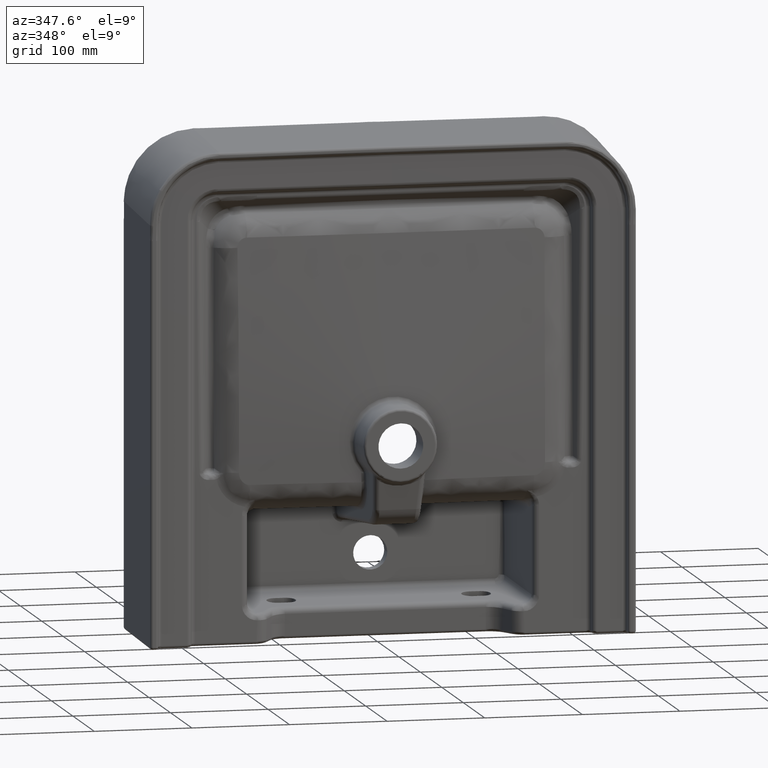
[diagram: clean part render]
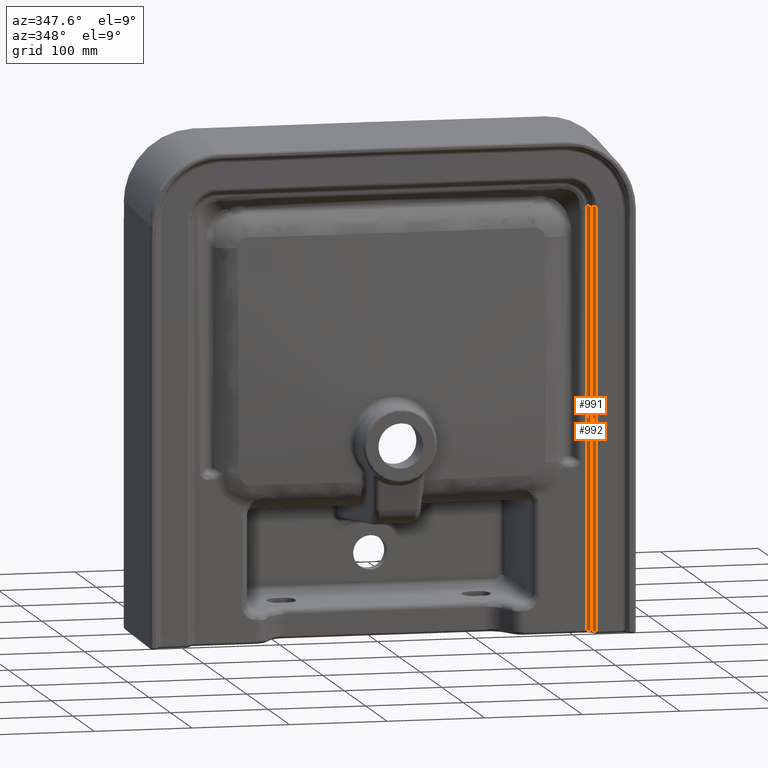
[diagram: same view with one multi-face feature highlighted, each face labeled with its STEP entity id]
A machine part, auxiliary view. The highlighted faces form ONE feature: a constant-radius fillet chain: 2 tangent blend faces with common blend radius 4.7 mm. The faces share edges in the B-rep.
Their STEP definitions:
[1] entity #992 (Cylinder):
#165=CYLINDRICAL_SURFACE('',#4892,4.7);
#516=ELLIPSE('',#4890,4.70029338941449,4.7);
#653=LINE('',#8684,#806);
#676=LINE('',#11188,#829);
#806=VECTOR('',#5418,1.);
#829=VECTOR('',#5655,1.);
#992=ADVANCED_FACE('',(#1287),#165,.T.);
#1287=FACE_OUTER_BOUND('',#1596,.T.);
#1596=EDGE_LOOP('',(#2766,#2767,#2768,#2769));
#1801=CIRCLE('',#4891,4.7);
#2766=ORIENTED_EDGE('',*,*,#4258,.F.);
#2767=ORIENTED_EDGE('',*,*,#4259,.T.);
#2768=ORIENTED_EDGE('',*,*,#4063,.F.);
#2769=ORIENTED_EDGE('',*,*,#4260,.F.);
#3622=VERTEX_POINT('',#8685);
#3623=VERTEX_POINT('',#8686);
#3704=VERTEX_POINT('',#11133);
#3705=VERTEX_POINT('',#11187);
#4063=EDGE_CURVE('',#3622,#3623,#653,.T.);
#4258=EDGE_CURVE('',#3705,#3704,#676,.T.);
#4259=EDGE_CURVE('',#3705,#3623,#516,.T.);
#4260=EDGE_CURVE('',#3704,#3622,#1801,.T.);
#4890=AXIS2_PLACEMENT_3D('',#11190,#5658,#5659);
#4891=AXIS2_PLACEMENT_3D('',#11191,#5660,#5661);
#4892=AXIS2_PLACEMENT_3D('',#11192,#5662,#5663);
#5418=DIRECTION('',(1.09668122070388E-014,1.,0.));
#5655=DIRECTION('',(-1.09668018107458E-014,-1.,6.93889390390723E-018));
#5658=DIRECTION('',(1.20885235001112E-011,-0.999937580616746,-0.011172952623627));
#5659=DIRECTION('',(-1.08285504508629E-009,-0.0111729526236269,0.999937580616746));
#5660=DIRECTION('',(-3.30252796625309E-015,-1.,1.79717352111197E-015));
#5661=DIRECTION('',(0.,0.,-0.999999999999999));
#5662=DIRECTION('',(-1.09668018107458E-014,-1.,6.93889390390723E-018));
#5663=DIRECTION('',(0.,0.,-0.999999999999999));
#8684=CARTESIAN_POINT('',(209.529078116805,194.311539914372,-88.2041620200482));
#8685=CARTESIAN_POINT('',(209.5290781168,-238.352009875413,-88.2041620200482));
#8686=CARTESIAN_POINT('',(209.529078116804,191.411753412211,-88.2041620200482));
#11133=CARTESIAN_POINT('',(204.999345726537,-238.352009875413,-84.7440094160604));
#11187=CARTESIAN_POINT('',(204.999345726541,191.37309087775,-84.7440094160604));
#11188=CARTESIAN_POINT('',(204.999345726541,185.150918325317,-84.7440094160604));
#11190=CARTESIAN_POINT('',(209.532863368982,191.359237273885,-83.504163544318));
#11191=CARTESIAN_POINT('',(209.532863368978,-238.352009875413,-83.5041635443181));
#11192=CARTESIAN_POINT('',(209.532863368982,185.150918325317,-83.504163544318));
[2] entity #991 (Cylinder):
#164=CYLINDRICAL_SURFACE('',#4889,4.7);
#515=ELLIPSE('',#4888,4.70469203510451,4.7);
#526=LINE('',#6021,#679);
#676=LINE('',#11188,#829);
#679=VECTOR('',#5073,1.);
#829=VECTOR('',#5655,1.);
#991=ADVANCED_FACE('',(#1286),#164,.F.);
#1286=FACE_OUTER_BOUND('',#1595,.T.);
#1595=EDGE_LOOP('',(#2762,#2763,#2764,#2765));
#1800=CIRCLE('',#4887,4.7);
#2762=ORIENTED_EDGE('',*,*,#3716,.F.);
#2763=ORIENTED_EDGE('',*,*,#4257,.T.);
#2764=ORIENTED_EDGE('',*,*,#4258,.T.);
#2765=ORIENTED_EDGE('',*,*,#4255,.T.);
#3313=VERTEX_POINT('',#6020);
#3314=VERTEX_POINT('',#6022);
#3704=VERTEX_POINT('',#11133);
#3705=VERTEX_POINT('',#11187);
#3716=EDGE_CURVE('',#3313,#3314,#526,.T.);
#4255=EDGE_CURVE('',#3704,#3314,#1800,.T.);
#4257=EDGE_CURVE('',#3313,#3705,#515,.T.);
#4258=EDGE_CURVE('',#3705,#3704,#676,.T.);
#4887=AXIS2_PLACEMENT_3D('',#11132,#5651,#5652);
#4888=AXIS2_PLACEMENT_3D('',#11186,#5653,#5654);
#4889=AXIS2_PLACEMENT_3D('',#11189,#5656,#5657);
#5073=DIRECTION('',(-1.09668133949059E-014,-1.,6.93889390390723E-018));
#5651=DIRECTION('',(-2.25480711492933E-011,-1.,-2.68394265146021E-011));
#5652=DIRECTION('',(0.,2.68402321644752E-011,-0.999999999999999));
#5653=DIRECTION('',(-4.83417529967735E-011,0.999002690278238,0.0446500259444927));
#5654=DIRECTION('',(-1.08184817675133E-009,-0.0446500259444927,0.999002690278238));
#5655=DIRECTION('',(-1.09668018107458E-014,-1.,6.93889390390723E-018));
#5656=DIRECTION('',(-1.09668018107458E-014,-1.,6.93889390390723E-018));
#5657=DIRECTION('',(0.,0.,-0.999999999999999));
#6020=CARTESIAN_POINT('',(200.469614772213,191.218440739956,-81.2838568132293));
#6021=CARTESIAN_POINT('',(200.469614772208,-238.352009875404,-81.2838568132293));
#6022=CARTESIAN_POINT('',(200.469614772208,-238.352009875404,-81.2838568132293));
#11132=CARTESIAN_POINT('',(200.465828084096,-238.352009875278,-85.9838552878028));
#11133=CARTESIAN_POINT('',(204.999345726537,-238.352009875413,-84.7440094160604));
#11186=CARTESIAN_POINT('',(200.4658280841,191.428505293206,-85.9838552878028));
#11187=CARTESIAN_POINT('',(204.999345726541,191.37309087775,-84.7440094160604));
#11188=CARTESIAN_POINT('',(204.999345726541,185.150918325317,-84.7440094160604));
#11189=CARTESIAN_POINT('',(200.4658280841,185.150918325317,-85.9838552878028));